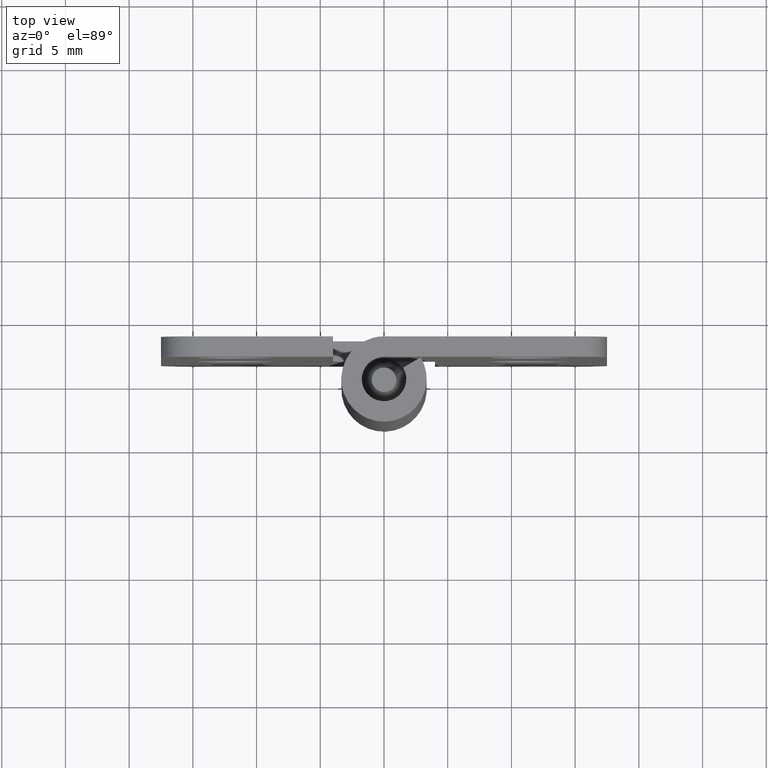
[diagram: clean part render]
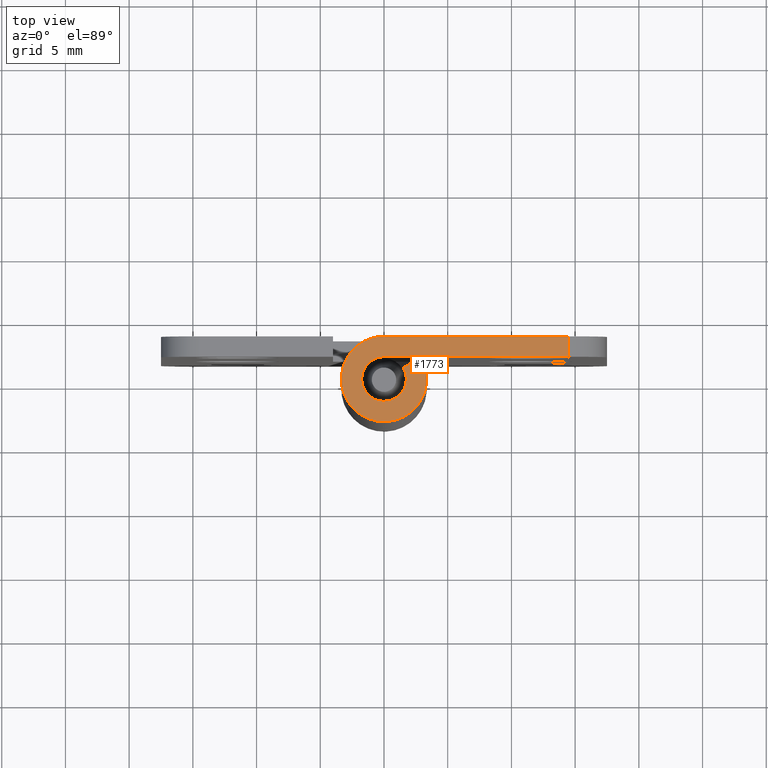
[diagram: same view with one face highlighted and labeled with its STEP entity id]
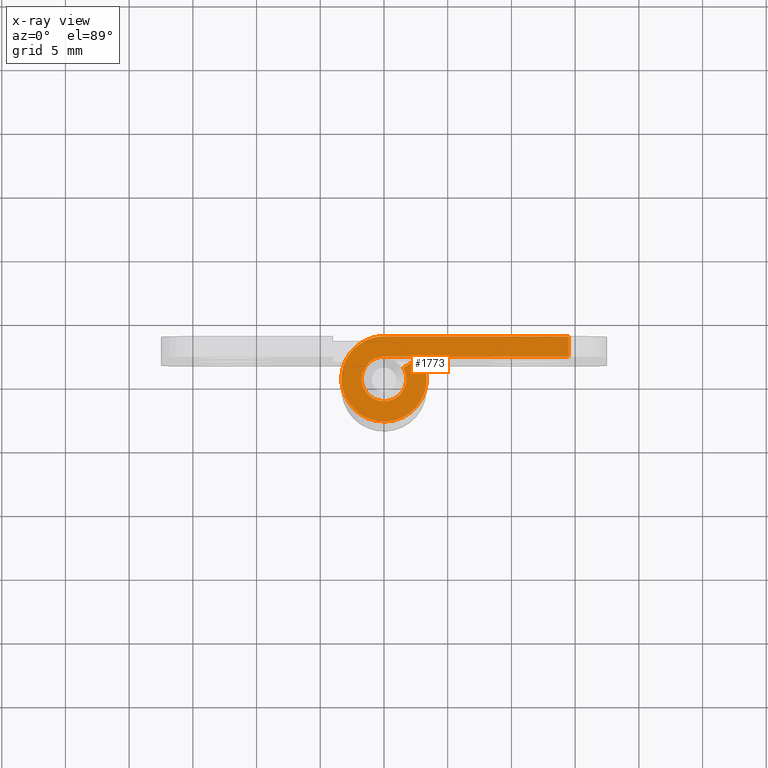
[diagram: x-ray of the same camera — body ghosted, the highlighted face saturated]
A machine part, top view. The second image highlights one B-rep face of the part: STEP entity #1773.
The next image is the same camera in x-ray: the body ghosted, the highlighted face saturated — about 0% of this face is hidden behind the body in this view.
In plain terms, the highlighted face is a freeform B-spline surface patch.
Its self-contained STEP definition (entity closure, byte-faithful):
#1483=CARTESIAN_POINT('',(14.500000000000000,3.349998000000000,45.000008000000001));
#1484=VERTEX_POINT('',#1483);
#1500=CARTESIAN_POINT('',(14.500000000000000,1.750000000000000,45.000008000000001));
#1501=VERTEX_POINT('',#1500);
#1502=CARTESIAN_POINT('',(14.500000000000000,1.750000000000000,45.000008000000001));
#1503=CARTESIAN_POINT('',(14.500000000000000,3.349998000000000,45.000008000000001));
#1504=QUASI_UNIFORM_CURVE('',1,(#1502,#1503),.UNSPECIFIED.,.F.,.U.);
#1505=EDGE_CURVE('',#1501,#1484,#1504,.T.);
#1704=CARTESIAN_POINT('',(-4.241601600109144,-3.684625239831223,45.000008000000001));
#1705=CARTESIAN_POINT('',(15.391607665143701,-3.684625239831223,45.000008000000001));
#1706=CARTESIAN_POINT('',(-4.241601600109144,3.684661180653410,45.000008000000001));
#1707=CARTESIAN_POINT('',(15.391607665143701,3.684661180653410,45.000008000000001));
#1708=B_SPLINE_SURFACE_WITH_KNOTS('',1,1,((#1704,#1706),(#1705,#1707)),.UNSPECIFIED.,.F.,.F.,.U.,(2,2),(2,2),(0.0,19.633209265252841),(0.0,7.369286420484633),.UNSPECIFIED.);
#1709=CARTESIAN_POINT('',(0.0,1.750000000000000,45.000008000000001));
#1710=VERTEX_POINT('',#1709);
#1711=CARTESIAN_POINT('',(14.500000000000000,1.750000000000000,45.000008000000001));
#1712=CARTESIAN_POINT('',(0.0,1.750000000000000,45.000008000000001));
#1713=QUASI_UNIFORM_CURVE('',1,(#1711,#1712),.UNSPECIFIED.,.F.,.U.);
#1714=EDGE_CURVE('',#1501,#1710,#1713,.T.);
#1715=ORIENTED_EDGE('',*,*,#1714,.F.);
#1716=ORIENTED_EDGE('',*,*,#1505,.T.);
#1717=CARTESIAN_POINT('',(0.003660600504212,3.349998000000000,45.000008000000001));
#1718=VERTEX_POINT('',#1717);
#1719=CARTESIAN_POINT('',(0.003660600504212,3.349998000000000,45.000008000000001));
#1720=CARTESIAN_POINT('',(14.500000000000000,3.349998000000000,45.000008000000001));
#1721=QUASI_UNIFORM_CURVE('',1,(#1719,#1720),.UNSPECIFIED.,.F.,.U.);
#1722=EDGE_CURVE('',#1718,#1484,#1721,.T.);
#1723=ORIENTED_EDGE('',*,*,#1722,.F.);
#1724=CARTESIAN_POINT('',(2.886607004772215,1.700000000000000,45.000008000000001));
#1725=VERTEX_POINT('',#1724);
#1726=CARTESIAN_POINT('',(2.886607004772213,1.699999999999998,45.000008000000001));
#1727=CARTESIAN_POINT('',(4.194351497508468,-0.520555537167510,45.000008000000008));
#1728=CARTESIAN_POINT('',(2.383462674101593,-2.354061528755033,45.000008000000001));
#1729=CARTESIAN_POINT('',(0.572573850694718,-4.187567520342557,45.000008000000008));
#1730=CARTESIAN_POINT('',(-1.664041783588552,-2.907484297889059,45.000008000000001));
#1731=CARTESIAN_POINT('',(-3.900657417871825,-1.627401075435559,45.000008000000008));
#1732=CARTESIAN_POINT('',(-3.237010595500708,0.862706441737950,45.000008000000001));
#1733=CARTESIAN_POINT('',(-2.573363773129593,3.352813958911453,45.000008000000008));
#1734=CARTESIAN_POINT('',(0.003660600504208,3.349997999999992,45.000008000000001));
#1742=(BOUNDED_CURVE()B_SPLINE_CURVE(2,(#1726,#1727,#1728,#1729,#1730,#1731,#1732,#1733,#1734),.UNSPECIFIED.,.F.,.U.)B_SPLINE_CURVE_WITH_KNOTS((3,2,2,2,3),(0.0,0.250000000000000,0.500000000000000,0.750000000000000,1.0),.UNSPECIFIED.)CURVE()GEOMETRIC_REPRESENTATION_ITEM()RATIONAL_B_SPLINE_CURVE((1.0,0.792612230537061,1.0,0.792612230537061,1.0,0.792612230537061,1.0,0.792612230537061,1.0))REPRESENTATION_ITEM(''));
#1743=EDGE_CURVE('',#1725,#1718,#1742,.T.);
#1744=ORIENTED_EDGE('',*,*,#1743,.F.);
#1745=CARTESIAN_POINT('',(1.507929032343695,0.888059701492535,45.000008000000001));
#1746=VERTEX_POINT('',#1745);
#1747=CARTESIAN_POINT('',(1.507929032343695,0.888059701492535,45.000008000000001));
#1748=CARTESIAN_POINT('',(2.886607004772215,1.700000000000000,45.000008000000001));
#1749=QUASI_UNIFORM_CURVE('',1,(#1747,#1748),.UNSPECIFIED.,.F.,.U.);
#1750=EDGE_CURVE('',#1746,#1725,#1749,.T.);
#1751=ORIENTED_EDGE('',*,*,#1750,.F.);
#1752=CARTESIAN_POINT('',(1.507929032343694,0.888059701492535,45.000008000000001));
#1753=CARTESIAN_POINT('',(2.190886080346277,-0.271604180109119,45.000008000000015));
#1754=CARTESIAN_POINT('',(1.245428332878128,-1.229393455190163,45.000008000000001));
#1755=CARTESIAN_POINT('',(0.299970585409981,-2.187182730271206,45.000008000000015));
#1756=CARTESIAN_POINT('',(-0.868445600595702,-1.519309790268584,45.000008000000001));
#1757=CARTESIAN_POINT('',(-2.036861786601388,-0.851436850265962,45.000008000000015));
#1758=CARTESIAN_POINT('',(-1.691344455303239,0.449281574867020,45.000008000000001));
#1759=CARTESIAN_POINT('',(-1.345827124005091,1.750000000000000,45.000008000000015));
#1760=CARTESIAN_POINT('',(0.0,1.750000000000000,45.000008000000001));
#1768=(BOUNDED_CURVE()B_SPLINE_CURVE(2,(#1752,#1753,#1754,#1755,#1756,#1757,#1758,#1759,#1760),.UNSPECIFIED.,.F.,.U.)B_SPLINE_CURVE_WITH_KNOTS((3,2,2,2,3),(0.0,0.250000000000000,0.500000000000000,0.750000000000000,1.0),.UNSPECIFIED.)CURVE()GEOMETRIC_REPRESENTATION_ITEM()RATIONAL_B_SPLINE_CURVE((1.0,0.792695505378780,1.0,0.792695505378780,1.0,0.792695505378780,1.0,0.792695505378780,1.0))REPRESENTATION_ITEM(''));
#1769=EDGE_CURVE('',#1746,#1710,#1768,.T.);
#1770=ORIENTED_EDGE('',*,*,#1769,.T.);
#1771=EDGE_LOOP('',(#1715,#1716,#1723,#1744,#1751,#1770));
#1772=FACE_OUTER_BOUND('',#1771,.T.);
#1773=ADVANCED_FACE('',(#1772),#1708,.T.);